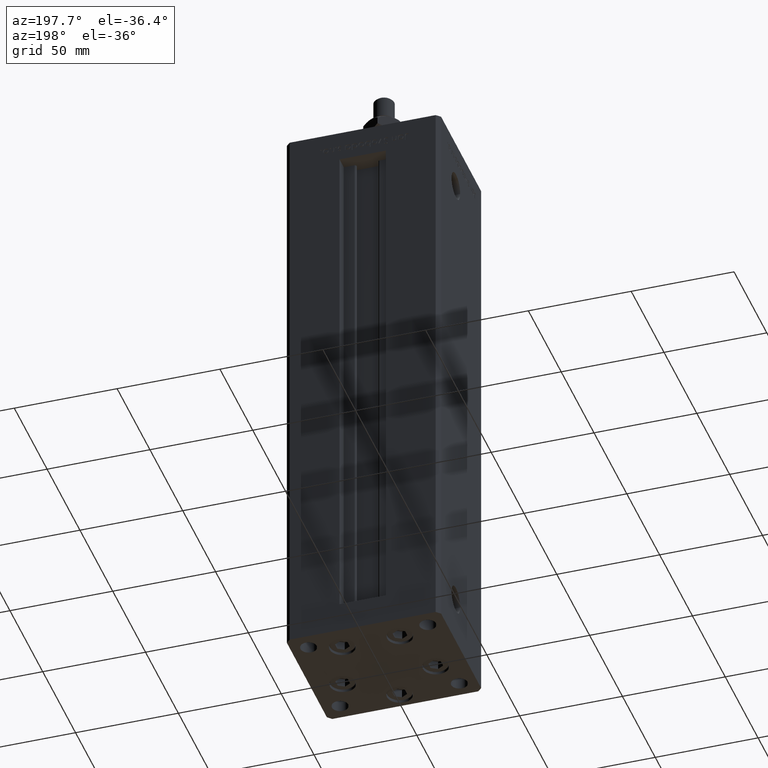
[diagram: clean part render]
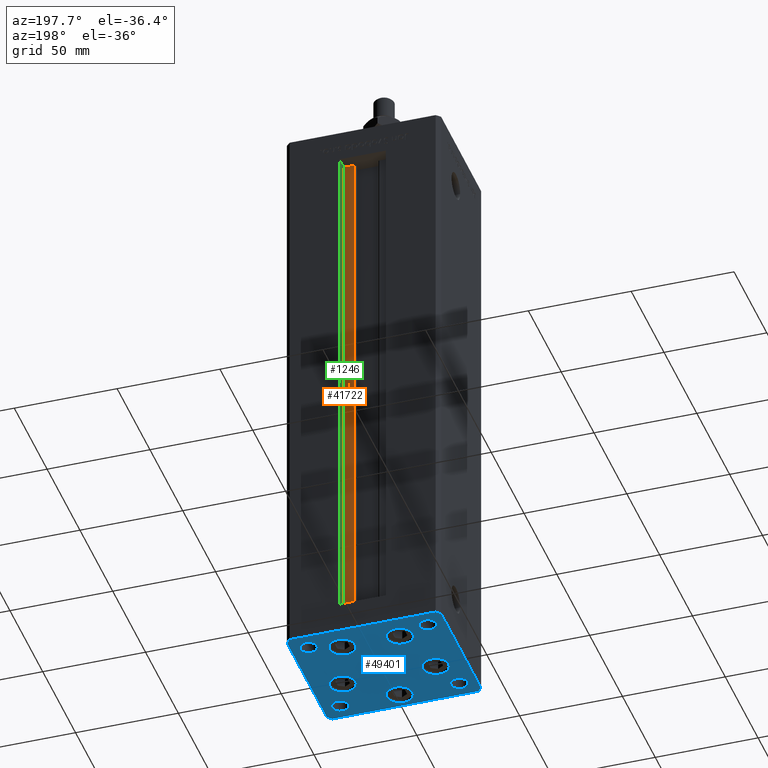
[diagram: same view with three faces highlighted in distinct colors, each labeled with its STEP entity id]
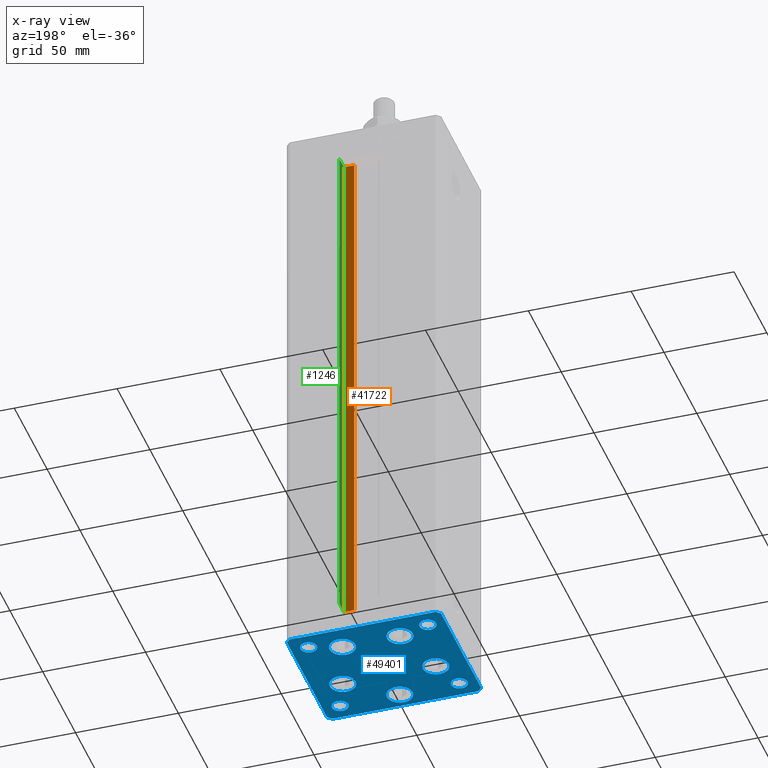
[diagram: x-ray of the same camera — body ghosted, the three highlighted faces saturated]
A machine part, auxiliary view with three faces highlighted in distinct colors.
The next image is the same camera in x-ray (body ghosted, the three faces saturated) — at least one of them is partly hidden behind the body in this view.
Their STEP definitions:

[orange] entity #41722 — the highlighted planar face has unit normal (0, -1, 0).
#360 = ORIENTED_EDGE ( 'NONE', *, *, #31040, .F. ) ;
#379 = DIRECTION ( 'NONE',  ( -0.000000000000000000, -0.000000000000000000, 1.000000000000000000 ) ) ;
#799 = LINE ( 'NONE', #38281, #48275 ) ;
#848 = VERTEX_POINT ( 'NONE', #29689 ) ;
#7837 = EDGE_LOOP ( 'NONE', ( #14987, #50062, #9845, #360 ) ) ;
#9845 = ORIENTED_EDGE ( 'NONE', *, *, #13611, .T. ) ;
#10400 = VECTOR ( 'NONE', #36950, 1000.000000000000000 ) ;
#13611 = EDGE_CURVE ( 'NONE', #35153, #848, #799, .T. ) ;
#14987 = ORIENTED_EDGE ( 'NONE', *, *, #28647, .F. ) ;
#15499 = CARTESIAN_POINT ( 'NONE',  ( 11.25000000000000178, 25.99999999999999289, 0.000000000000000000 ) ) ;
#15905 = VERTEX_POINT ( 'NONE', #51975 ) ;
#16407 = LINE ( 'NONE', #32971, #46452 ) ;
#17359 = CARTESIAN_POINT ( 'NONE',  ( 6.183333333334001480, 25.99999999999999289, 0.000000000000000000 ) ) ;
#18944 = AXIS2_PLACEMENT_3D ( 'NONE', #17359, #33638, #32834 ) ;
#20400 = CARTESIAN_POINT ( 'NONE',  ( 6.183333333334001480, 25.99999999999999289, 0.000000000000000000 ) ) ;
#23844 = EDGE_CURVE ( 'NONE', #35153, #46197, #28006, .T. ) ;
#24318 = CARTESIAN_POINT ( 'NONE',  ( 6.183333333334001480, 25.99999999999999289, 0.000000000000000000 ) ) ;
#28006 = LINE ( 'NONE', #20400, #10400 ) ;
#28647 = EDGE_CURVE ( 'NONE', #46197, #15905, #16407, .T. ) ;
#29689 = CARTESIAN_POINT ( 'NONE',  ( 6.183333333334001480, 25.99999999999999289, 256.0000000000000000 ) ) ;
#31040 = EDGE_CURVE ( 'NONE', #15905, #848, #51705, .T. ) ;
#32834 = DIRECTION ( 'NONE',  ( 0.000000000000000000, -0.000000000000000000, -1.000000000000000000 ) ) ;
#32971 = CARTESIAN_POINT ( 'NONE',  ( 11.25000000000000178, 25.99999999999999289, 0.000000000000000000 ) ) ;
#33108 = FACE_OUTER_BOUND ( 'NONE', #7837, .T. ) ;
#33638 = DIRECTION ( 'NONE',  ( 0.000000000000000000, -1.000000000000000000, 0.000000000000000000 ) ) ;
#34459 = DIRECTION ( 'NONE',  ( -0.000000000000000000, -0.000000000000000000, 1.000000000000000000 ) ) ;
#34584 = DIRECTION ( 'NONE',  ( -1.000000000000000000, 0.000000000000000000, 0.000000000000000000 ) ) ;
#35153 = VERTEX_POINT ( 'NONE', #24318 ) ;
#36950 = DIRECTION ( 'NONE',  ( 1.000000000000000000, 0.000000000000000000, 0.000000000000000000 ) ) ;
#38281 = CARTESIAN_POINT ( 'NONE',  ( 6.183333333334001480, 25.99999999999999289, 0.000000000000000000 ) ) ;
#41722 = ADVANCED_FACE ( 'NONE', ( #33108 ), #46413, .F. ) ;
#43536 = CARTESIAN_POINT ( 'NONE',  ( 0.000000000000000000, 25.99999999999999289, 256.0000000000000000 ) ) ;
#46197 = VERTEX_POINT ( 'NONE', #15499 ) ;
#46413 = PLANE ( 'NONE',  #18944 ) ;
#46452 = VECTOR ( 'NONE', #379, 1000.000000000000000 ) ;
#48102 = VECTOR ( 'NONE', #34584, 1000.000000000000000 ) ;
#48275 = VECTOR ( 'NONE', #34459, 1000.000000000000000 ) ;
#50062 = ORIENTED_EDGE ( 'NONE', *, *, #23844, .F. ) ;
#51705 = LINE ( 'NONE', #43536, #48102 ) ;
#51975 = CARTESIAN_POINT ( 'NONE',  ( 11.25000000000000178, 25.99999999999999289, 256.0000000000000000 ) ) ;

[blue] entity #49401 — the highlighted planar face has unit normal (0, 0, -1).
#217 = VERTEX_POINT ( 'NONE', #1107 ) ;
#474 = ORIENTED_EDGE ( 'NONE', *, *, #4106, .T. ) ;
#608 = PLANE ( 'NONE',  #29402 ) ;
#638 = VERTEX_POINT ( 'NONE', #2586 ) ;
#708 = CIRCLE ( 'NONE', #24976, 6.250000000000000000 ) ;
#937 = CARTESIAN_POINT ( 'NONE',  ( -25.00000000000001066, -23.99999999999999289, 0.000000000000000000 ) ) ;
#1006 = DIRECTION ( 'NONE',  ( 1.000000000000000000, 0.000000000000000000, 0.000000000000000000 ) ) ;
#1107 = CARTESIAN_POINT ( 'NONE',  ( 37.50000000000001421, -30.50000000000000711, 0.000000000000000000 ) ) ;
#1165 = VERTEX_POINT ( 'NONE', #8740 ) ;
#1180 = DIRECTION ( 'NONE',  ( 1.000000000000000000, 0.000000000000000000, 0.000000000000000000 ) ) ;
#1450 = CARTESIAN_POINT ( 'NONE',  ( -13.99106857963322703, 19.49999999999999645, 0.000000000000000000 ) ) ;
#1964 = VERTEX_POINT ( 'NONE', #37385 ) ;
#1966 = ORIENTED_EDGE ( 'NONE', *, *, #23042, .T. ) ;
#2155 = AXIS2_PLACEMENT_3D ( 'NONE', #3382, #2853, #7721 ) ;
#2377 = CARTESIAN_POINT ( 'NONE',  ( -29.00000000000001066, 24.00000000000000711, 0.000000000000000000 ) ) ;
#2586 = CARTESIAN_POINT ( 'NONE',  ( 7.741068579633223479, 19.50000000000000000, 0.000000000000000000 ) ) ;
#2666 = CARTESIAN_POINT ( 'NONE',  ( -35.49999999999998579, -32.50000000000001421, 0.000000000000000000 ) ) ;
#2853 = DIRECTION ( 'NONE',  ( 0.000000000000000000, -0.000000000000000000, -1.000000000000000000 ) ) ;
#3230 = ORIENTED_EDGE ( 'NONE', *, *, #27435, .F. ) ;
#3269 = VECTOR ( 'NONE', #20703, 1000.000000000000000 ) ;
#3382 = CARTESIAN_POINT ( 'NONE',  ( 29.00000000000001066, -23.99999999999999289, 0.000000000000000000 ) ) ;
#3392 = CARTESIAN_POINT ( 'NONE',  ( -29.00000000000001066, 24.00000000000000711, 0.000000000000000000 ) ) ;
#3556 = CARTESIAN_POINT ( 'NONE',  ( -35.50000000000002842, 32.49999999999999289, 0.000000000000000000 ) ) ;
#3641 = ORIENTED_EDGE ( 'NONE', *, *, #41429, .T. ) ;
#3980 = AXIS2_PLACEMENT_3D ( 'NONE', #34803, #5755, #43231 ) ;
#4000 = CARTESIAN_POINT ( 'NONE',  ( 35.49999999999992184, 32.50000000000000711, 0.000000000000000000 ) ) ;
#4106 = EDGE_CURVE ( 'NONE', #13740, #31493, #10956, .T. ) ;
#4216 = EDGE_CURVE ( 'NONE', #10160, #32387, #44619, .T. ) ;
#4575 = ORIENTED_EDGE ( 'NONE', *, *, #31825, .T. ) ;
#4646 = EDGE_LOOP ( 'NONE', ( #47519, #27226 ) ) ;
#5755 = DIRECTION ( 'NONE',  ( 0.000000000000000000, -0.000000000000000000, -1.000000000000000000 ) ) ;
#5964 = CIRCLE ( 'NONE', #37205, 6.250000000000001776 ) ;
#6345 = CARTESIAN_POINT ( 'NONE',  ( 37.49999999999992184, 30.50000000000001066, 0.000000000000000000 ) ) ;
#6399 = DIRECTION ( 'NONE',  ( 1.000000000000000000, 0.000000000000000000, 0.000000000000000000 ) ) ;
#6443 = VECTOR ( 'NONE', #7409, 1000.000000000000114 ) ;
#6494 = DIRECTION ( 'NONE',  ( 0.000000000000000000, -0.000000000000000000, -1.000000000000000000 ) ) ;
#6669 = DIRECTION ( 'NONE',  ( 0.000000000000000000, -0.000000000000000000, -1.000000000000000000 ) ) ;
#6945 = CIRCLE ( 'NONE', #29503, 3.999999999999996447 ) ;
#7080 = CARTESIAN_POINT ( 'NONE',  ( 29.00000000000001066, 24.00000000000000711, 0.000000000000000000 ) ) ;
#7147 = DIRECTION ( 'NONE',  ( -0.7071067811865482389, 0.7071067811865469066, 0.000000000000000000 ) ) ;
#7163 = ORIENTED_EDGE ( 'NONE', *, *, #11513, .F. ) ;
#7409 = DIRECTION ( 'NONE',  ( 0.7071067811865474617, -0.7071067811865474617, 0.000000000000000000 ) ) ;
#7524 = LINE ( 'NONE', #4000, #21703 ) ;
#7537 = AXIS2_PLACEMENT_3D ( 'NONE', #21659, #38751, #1006 ) ;
#7710 = VERTEX_POINT ( 'NONE', #45807 ) ;
#7721 = DIRECTION ( 'NONE',  ( 1.000000000000000000, 0.000000000000000000, 0.000000000000000000 ) ) ;
#7804 = CIRCLE ( 'NONE', #32060, 6.250000000000000000 ) ;
#7832 = CARTESIAN_POINT ( 'NONE',  ( -35.50000000000002842, 32.49999999999999289, 0.000000000000000000 ) ) ;
#8111 = VERTEX_POINT ( 'NONE', #21381 ) ;
#8421 = EDGE_CURVE ( 'NONE', #42118, #53080, #20446, .T. ) ;
#8488 = DIRECTION ( 'NONE',  ( 1.000000000000000000, 0.000000000000000000, 0.000000000000000000 ) ) ;
#8497 = FACE_BOUND ( 'NONE', #48600, .T. ) ;
#8596 = CARTESIAN_POINT ( 'NONE',  ( 29.00000000000001066, 24.00000000000000711, 0.000000000000000000 ) ) ;
#8740 = CARTESIAN_POINT ( 'NONE',  ( 25.00000000000000711, -23.99999999999999289, 0.000000000000000000 ) ) ;
#8781 = EDGE_LOOP ( 'NONE', ( #28926, #14726 ) ) ;
#9453 = ORIENTED_EDGE ( 'NONE', *, *, #48179, .T. ) ;
#9600 = ORIENTED_EDGE ( 'NONE', *, *, #31327, .T. ) ;
#9631 = CARTESIAN_POINT ( 'NONE',  ( -28.87741699796952233, -8.000000000000005329, 0.000000000000000000 ) ) ;
#9689 = CARTESIAN_POINT ( 'NONE',  ( 35.49999999999992184, 32.50000000000000711, 0.000000000000000000 ) ) ;
#9816 = DIRECTION ( 'NONE',  ( -1.478780668045802821E-15, 1.000000000000000000, 0.000000000000000000 ) ) ;
#9857 = EDGE_CURVE ( 'NONE', #48932, #12725, #41340, .T. ) ;
#10160 = VERTEX_POINT ( 'NONE', #14253 ) ;
#10664 = ORIENTED_EDGE ( 'NONE', *, *, #13256, .T. ) ;
#10714 = EDGE_CURVE ( 'NONE', #30947, #217, #44284, .T. ) ;
#10781 = DIRECTION ( 'NONE',  ( -0.000000000000000000, 0.000000000000000000, 1.000000000000000000 ) ) ;
#10956 = LINE ( 'NONE', #6345, #11642 ) ;
#11088 = CARTESIAN_POINT ( 'NONE',  ( 28.87741699796952233, -8.000000000000000000, 0.000000000000000000 ) ) ;
#11513 = EDGE_CURVE ( 'NONE', #7710, #11637, #13641, .T. ) ;
#11637 = VERTEX_POINT ( 'NONE', #28798 ) ;
#11642 = VECTOR ( 'NONE', #7147, 999.9999999999998863 ) ;
#11746 = CARTESIAN_POINT ( 'NONE',  ( 6.250000000000002665, -24.00000000000000000, 0.000000000000000000 ) ) ;
#11807 = CARTESIAN_POINT ( 'NONE',  ( 13.99106857963322348, 19.50000000000000000, 0.000000000000000000 ) ) ;
#12019 = CARTESIAN_POINT ( 'NONE',  ( -22.62741699796951877, -8.000000000000005329, 0.000000000000000000 ) ) ;
#12028 = CARTESIAN_POINT ( 'NONE',  ( -37.49999999999998579, -30.50000000000001421, 0.000000000000000000 ) ) ;
#12291 = CARTESIAN_POINT ( 'NONE',  ( -37.50000000000001421, 30.49999999999998579, 0.000000000000000000 ) ) ;
#12725 = VERTEX_POINT ( 'NONE', #33076 ) ;
#12752 = CIRCLE ( 'NONE', #7537, 6.250000000000001776 ) ;
#13111 = CARTESIAN_POINT ( 'NONE',  ( 0.000000000000000000, 0.000000000000000000, 0.000000000000000000 ) ) ;
#13256 = EDGE_CURVE ( 'NONE', #8111, #10160, #48939, .T. ) ;
#13641 = CIRCLE ( 'NONE', #50084, 4.000000000000003553 ) ;
#13740 = VERTEX_POINT ( 'NONE', #35242 ) ;
#14032 = EDGE_CURVE ( 'NONE', #46583, #53057, #38747, .T. ) ;
#14252 = ORIENTED_EDGE ( 'NONE', *, *, #42617, .T. ) ;
#14253 = CARTESIAN_POINT ( 'NONE',  ( -37.49999999999998579, -30.50000000000001421, 0.000000000000000000 ) ) ;
#14474 = AXIS2_PLACEMENT_3D ( 'NONE', #44440, #53401, #52338 ) ;
#14726 = ORIENTED_EDGE ( 'NONE', *, *, #52148, .F. ) ;
#15715 = LINE ( 'NONE', #7832, #45958 ) ;
#16096 = FACE_OUTER_BOUND ( 'NONE', #19938, .T. ) ;
#16138 = DIRECTION ( 'NONE',  ( 1.000000000000000000, 0.000000000000000000, 0.000000000000000000 ) ) ;
#16344 = VECTOR ( 'NONE', #25829, 1000.000000000000000 ) ;
#16640 = FACE_BOUND ( 'NONE', #19334, .T. ) ;
#16890 = CIRCLE ( 'NONE', #33360, 6.250000000000000000 ) ;
#16959 = CARTESIAN_POINT ( 'NONE',  ( -20.24106857963322881, 19.49999999999999645, 0.000000000000000000 ) ) ;
#17207 = ORIENTED_EDGE ( 'NONE', *, *, #51682, .T. ) ;
#17276 = AXIS2_PLACEMENT_3D ( 'NONE', #43885, #6669, #6399 ) ;
#17388 = CIRCLE ( 'NONE', #52094, 6.250000000000000000 ) ;
#17966 = LINE ( 'NONE', #18964, #42057 ) ;
#18384 = EDGE_CURVE ( 'NONE', #33874, #34221, #708, .T. ) ;
#18964 = CARTESIAN_POINT ( 'NONE',  ( 37.50000000000001421, -30.50000000000000711, 0.000000000000000000 ) ) ;
#18969 = CIRCLE ( 'NONE', #30236, 4.000000000000000000 ) ;
#19334 = EDGE_LOOP ( 'NONE', ( #4575, #9453 ) ) ;
#19490 = AXIS2_PLACEMENT_3D ( 'NONE', #8596, #37101, #25155 ) ;
#19654 = VERTEX_POINT ( 'NONE', #50821 ) ;
#19938 = EDGE_LOOP ( 'NONE', ( #49731, #3641, #24138, #9600, #474, #17207, #49007, #10664 ) ) ;
#19966 = DIRECTION ( 'NONE',  ( 0.000000000000000000, -0.000000000000000000, -1.000000000000000000 ) ) ;
#19983 = AXIS2_PLACEMENT_3D ( 'NONE', #3392, #34317, #30238 ) ;
#20446 = CIRCLE ( 'NONE', #3980, 4.000000000000000000 ) ;
#20703 = DIRECTION ( 'NONE',  ( 4.550094363217855288E-16, -1.000000000000000000, 0.000000000000000000 ) ) ;
#20711 = DIRECTION ( 'NONE',  ( 0.000000000000000000, -0.000000000000000000, -1.000000000000000000 ) ) ;
#21263 = CARTESIAN_POINT ( 'NONE',  ( -7.741068579633227031, 19.49999999999999645, 0.000000000000000000 ) ) ;
#21324 = EDGE_CURVE ( 'NONE', #53080, #42118, #18969, .T. ) ;
#21381 = CARTESIAN_POINT ( 'NONE',  ( -37.50000000000001421, 30.49999999999998579, 0.000000000000000000 ) ) ;
#21659 = CARTESIAN_POINT ( 'NONE',  ( 22.62741699796951877, -8.000000000000000000, 0.000000000000000000 ) ) ;
#21703 = VECTOR ( 'NONE', #32773, 1000.000000000000000 ) ;
#21762 = DIRECTION ( 'NONE',  ( 0.000000000000000000, -0.000000000000000000, -1.000000000000000000 ) ) ;
#21803 = DIRECTION ( 'NONE',  ( 0.000000000000000000, -0.000000000000000000, -1.000000000000000000 ) ) ;
#22056 = VERTEX_POINT ( 'NONE', #3556 ) ;
#22542 = VERTEX_POINT ( 'NONE', #21263 ) ;
#23042 = EDGE_CURVE ( 'NONE', #34221, #33874, #28579, .T. ) ;
#23159 = EDGE_CURVE ( 'NONE', #22056, #8111, #15715, .T. ) ;
#23245 = AXIS2_PLACEMENT_3D ( 'NONE', #12019, #20711, #8488 ) ;
#23519 = CARTESIAN_POINT ( 'NONE',  ( -29.00000000000001066, -23.99999999999999289, 0.000000000000000000 ) ) ;
#23760 = DIRECTION ( 'NONE',  ( 0.000000000000000000, -0.000000000000000000, -1.000000000000000000 ) ) ;
#24138 = ORIENTED_EDGE ( 'NONE', *, *, #10714, .T. ) ;
#24430 = DIRECTION ( 'NONE',  ( 1.000000000000000000, 0.000000000000000000, 0.000000000000000000 ) ) ;
#24626 = EDGE_CURVE ( 'NONE', #638, #53268, #17388, .T. ) ;
#24785 = FACE_BOUND ( 'NONE', #28962, .T. ) ;
#24976 = AXIS2_PLACEMENT_3D ( 'NONE', #29661, #21803, #50341 ) ;
#25067 = EDGE_CURVE ( 'NONE', #1964, #46663, #6945, .T. ) ;
#25155 = DIRECTION ( 'NONE',  ( 1.000000000000000000, 0.000000000000000000, 0.000000000000000000 ) ) ;
#25829 = DIRECTION ( 'NONE',  ( 1.000000000000000000, 9.773090005503140331E-17, 0.000000000000000000 ) ) ;
#27172 = CARTESIAN_POINT ( 'NONE',  ( 35.50000000000000711, -32.50000000000000711, 0.000000000000000000 ) ) ;
#27226 = ORIENTED_EDGE ( 'NONE', *, *, #51086, .T. ) ;
#27435 = EDGE_CURVE ( 'NONE', #11637, #7710, #29028, .T. ) ;
#27662 = ORIENTED_EDGE ( 'NONE', *, *, #18384, .T. ) ;
#28579 = CIRCLE ( 'NONE', #49364, 6.250000000000000000 ) ;
#28600 = DIRECTION ( 'NONE',  ( -0.000000000000000000, 0.000000000000000000, 1.000000000000000000 ) ) ;
#28798 = CARTESIAN_POINT ( 'NONE',  ( 33.00000000000001421, 24.00000000000000711, 0.000000000000000000 ) ) ;
#28926 = ORIENTED_EDGE ( 'NONE', *, *, #25067, .F. ) ;
#28962 = EDGE_LOOP ( 'NONE', ( #33096, #52759 ) ) ;
#29006 = DIRECTION ( 'NONE',  ( -0.7071067811865426878, -0.7071067811865524577, 0.000000000000000000 ) ) ;
#29028 = CIRCLE ( 'NONE', #19490, 4.000000000000003553 ) ;
#29402 = AXIS2_PLACEMENT_3D ( 'NONE', #13111, #28600, #29656 ) ;
#29503 = AXIS2_PLACEMENT_3D ( 'NONE', #2377, #10781, #46944 ) ;
#29656 = DIRECTION ( 'NONE',  ( 1.000000000000000000, 0.000000000000000000, 0.000000000000000000 ) ) ;
#29661 = CARTESIAN_POINT ( 'NONE',  ( 2.939152317953647500E-15, -24.00000000000000000, 0.000000000000000000 ) ) ;
#29884 = CARTESIAN_POINT ( 'NONE',  ( 13.99106857963322348, 19.50000000000000000, 0.000000000000000000 ) ) ;
#30236 = AXIS2_PLACEMENT_3D ( 'NONE', #23519, #40342, #35982 ) ;
#30238 = DIRECTION ( 'NONE',  ( 1.000000000000000000, 0.000000000000000000, 0.000000000000000000 ) ) ;
#30742 = EDGE_CURVE ( 'NONE', #37789, #22542, #16890, .T. ) ;
#30826 = CARTESIAN_POINT ( 'NONE',  ( -33.00000000000000711, -23.99999999999999289, 0.000000000000000000 ) ) ;
#30947 = VERTEX_POINT ( 'NONE', #46279 ) ;
#31131 = AXIS2_PLACEMENT_3D ( 'NONE', #11807, #19966, #43609 ) ;
#31327 = EDGE_CURVE ( 'NONE', #217, #13740, #17966, .T. ) ;
#31493 = VERTEX_POINT ( 'NONE', #9689 ) ;
#31825 = EDGE_CURVE ( 'NONE', #19654, #1165, #36797, .T. ) ;
#32060 = AXIS2_PLACEMENT_3D ( 'NONE', #1450, #50372, #1180 ) ;
#32387 = VERTEX_POINT ( 'NONE', #2666 ) ;
#32773 = DIRECTION ( 'NONE',  ( -1.000000000000000000, -1.954618001100629052E-16, 0.000000000000000000 ) ) ;
#32935 = FACE_BOUND ( 'NONE', #44029, .T. ) ;
#33076 = CARTESIAN_POINT ( 'NONE',  ( 16.37741699796951877, -8.000000000000000000, 0.000000000000000000 ) ) ;
#33096 = ORIENTED_EDGE ( 'NONE', *, *, #21324, .T. ) ;
#33360 = AXIS2_PLACEMENT_3D ( 'NONE', #36765, #23760, #16138 ) ;
#33874 = VERTEX_POINT ( 'NONE', #11746 ) ;
#34221 = VERTEX_POINT ( 'NONE', #53529 ) ;
#34317 = DIRECTION ( 'NONE',  ( -0.000000000000000000, 0.000000000000000000, 1.000000000000000000 ) ) ;
#34803 = CARTESIAN_POINT ( 'NONE',  ( -29.00000000000001066, -23.99999999999999289, 0.000000000000000000 ) ) ;
#35242 = CARTESIAN_POINT ( 'NONE',  ( 37.49999999999992184, 30.50000000000001066, 0.000000000000000000 ) ) ;
#35311 = DIRECTION ( 'NONE',  ( 0.7071067811865487940, 0.7071067811865463515, 0.000000000000000000 ) ) ;
#35982 = DIRECTION ( 'NONE',  ( 1.000000000000000000, 0.000000000000000000, 0.000000000000000000 ) ) ;
#36323 = CIRCLE ( 'NONE', #17276, 4.000000000000003553 ) ;
#36721 = FACE_BOUND ( 'NONE', #4646, .T. ) ;
#36765 = CARTESIAN_POINT ( 'NONE',  ( -13.99106857963322703, 19.49999999999999645, 0.000000000000000000 ) ) ;
#36797 = CIRCLE ( 'NONE', #2155, 4.000000000000003553 ) ;
#37101 = DIRECTION ( 'NONE',  ( -0.000000000000000000, 0.000000000000000000, 1.000000000000000000 ) ) ;
#37205 = AXIS2_PLACEMENT_3D ( 'NONE', #52438, #48878, #24430 ) ;
#37385 = CARTESIAN_POINT ( 'NONE',  ( -25.00000000000001421, 24.00000000000000711, 0.000000000000000000 ) ) ;
#37789 = VERTEX_POINT ( 'NONE', #16959 ) ;
#37892 = ORIENTED_EDGE ( 'NONE', *, *, #14032, .T. ) ;
#38035 = ORIENTED_EDGE ( 'NONE', *, *, #38194, .T. ) ;
#38194 = EDGE_CURVE ( 'NONE', #12725, #48932, #12752, .T. ) ;
#38747 = CIRCLE ( 'NONE', #23245, 6.250000000000001776 ) ;
#38751 = DIRECTION ( 'NONE',  ( 0.000000000000000000, -0.000000000000000000, -1.000000000000000000 ) ) ;
#40342 = DIRECTION ( 'NONE',  ( 0.000000000000000000, -0.000000000000000000, -1.000000000000000000 ) ) ;
#41340 = CIRCLE ( 'NONE', #14474, 6.250000000000001776 ) ;
#41429 = EDGE_CURVE ( 'NONE', #32387, #30947, #46209, .T. ) ;
#41625 = FACE_BOUND ( 'NONE', #8781, .T. ) ;
#42057 = VECTOR ( 'NONE', #9816, 1000.000000000000000 ) ;
#42118 = VERTEX_POINT ( 'NONE', #30826 ) ;
#42413 = CARTESIAN_POINT ( 'NONE',  ( -35.49999999999998579, -32.50000000000001421, 0.000000000000000000 ) ) ;
#42617 = EDGE_CURVE ( 'NONE', #53057, #46583, #5964, .T. ) ;
#43231 = DIRECTION ( 'NONE',  ( 1.000000000000000000, 0.000000000000000000, 0.000000000000000000 ) ) ;
#43609 = DIRECTION ( 'NONE',  ( 1.000000000000000000, 0.000000000000000000, 0.000000000000000000 ) ) ;
#43756 = DIRECTION ( 'NONE',  ( -0.000000000000000000, 0.000000000000000000, 1.000000000000000000 ) ) ;
#43885 = CARTESIAN_POINT ( 'NONE',  ( 29.00000000000001066, -23.99999999999999289, 0.000000000000000000 ) ) ;
#44029 = EDGE_LOOP ( 'NONE', ( #38035, #45684 ) ) ;
#44284 = LINE ( 'NONE', #27172, #46549 ) ;
#44440 = CARTESIAN_POINT ( 'NONE',  ( 22.62741699796951877, -8.000000000000000000, 0.000000000000000000 ) ) ;
#44619 = LINE ( 'NONE', #12028, #6443 ) ;
#45029 = CIRCLE ( 'NONE', #31131, 6.250000000000000000 ) ;
#45346 = CARTESIAN_POINT ( 'NONE',  ( 20.24106857963322526, 19.50000000000000000, 0.000000000000000000 ) ) ;
#45684 = ORIENTED_EDGE ( 'NONE', *, *, #9857, .T. ) ;
#45807 = CARTESIAN_POINT ( 'NONE',  ( 25.00000000000000711, 24.00000000000000711, 0.000000000000000000 ) ) ;
#45958 = VECTOR ( 'NONE', #29006, 1000.000000000000000 ) ;
#46209 = LINE ( 'NONE', #42413, #16344 ) ;
#46279 = CARTESIAN_POINT ( 'NONE',  ( 35.50000000000000711, -32.50000000000000711, 0.000000000000000000 ) ) ;
#46549 = VECTOR ( 'NONE', #35311, 1000.000000000000000 ) ;
#46583 = VERTEX_POINT ( 'NONE', #48235 ) ;
#46663 = VERTEX_POINT ( 'NONE', #49578 ) ;
#46745 = DIRECTION ( 'NONE',  ( 1.000000000000000000, 0.000000000000000000, 0.000000000000000000 ) ) ;
#46944 = DIRECTION ( 'NONE',  ( 1.000000000000000000, 0.000000000000000000, 0.000000000000000000 ) ) ;
#47519 = ORIENTED_EDGE ( 'NONE', *, *, #30742, .T. ) ;
#47524 = DIRECTION ( 'NONE',  ( 1.000000000000000000, 0.000000000000000000, 0.000000000000000000 ) ) ;
#47665 = EDGE_LOOP ( 'NONE', ( #3230, #7163 ) ) ;
#47743 = CIRCLE ( 'NONE', #19983, 3.999999999999996447 ) ;
#48177 = EDGE_CURVE ( 'NONE', #53268, #638, #45029, .T. ) ;
#48179 = EDGE_CURVE ( 'NONE', #1165, #19654, #36323, .T. ) ;
#48235 = CARTESIAN_POINT ( 'NONE',  ( -16.37741699796951877, -8.000000000000005329, 0.000000000000000000 ) ) ;
#48317 = CARTESIAN_POINT ( 'NONE',  ( 2.939152317953647500E-15, -24.00000000000000000, 0.000000000000000000 ) ) ;
#48600 = EDGE_LOOP ( 'NONE', ( #14252, #37892 ) ) ;
#48633 = DIRECTION ( 'NONE',  ( 1.000000000000000000, 0.000000000000000000, 0.000000000000000000 ) ) ;
#48878 = DIRECTION ( 'NONE',  ( 0.000000000000000000, -0.000000000000000000, -1.000000000000000000 ) ) ;
#48927 = ORIENTED_EDGE ( 'NONE', *, *, #48177, .T. ) ;
#48932 = VERTEX_POINT ( 'NONE', #11088 ) ;
#48939 = LINE ( 'NONE', #12291, #3269 ) ;
#49007 = ORIENTED_EDGE ( 'NONE', *, *, #23159, .T. ) ;
#49364 = AXIS2_PLACEMENT_3D ( 'NONE', #48317, #6494, #47524 ) ;
#49401 = ADVANCED_FACE ( 'NONE', ( #36721, #50336, #32935, #53598, #8497, #49780, #16640, #41625, #16096, #24785 ), #608, .T. ) ;
#49578 = CARTESIAN_POINT ( 'NONE',  ( -33.00000000000000711, 24.00000000000000711, 0.000000000000000000 ) ) ;
#49731 = ORIENTED_EDGE ( 'NONE', *, *, #4216, .T. ) ;
#49780 = FACE_BOUND ( 'NONE', #47665, .T. ) ;
#49811 = EDGE_LOOP ( 'NONE', ( #1966, #27662 ) ) ;
#50084 = AXIS2_PLACEMENT_3D ( 'NONE', #7080, #43756, #48633 ) ;
#50336 = FACE_BOUND ( 'NONE', #53552, .T. ) ;
#50341 = DIRECTION ( 'NONE',  ( 1.000000000000000000, 0.000000000000000000, 0.000000000000000000 ) ) ;
#50372 = DIRECTION ( 'NONE',  ( 0.000000000000000000, -0.000000000000000000, -1.000000000000000000 ) ) ;
#50821 = CARTESIAN_POINT ( 'NONE',  ( 33.00000000000001421, -23.99999999999999289, 0.000000000000000000 ) ) ;
#51086 = EDGE_CURVE ( 'NONE', #22542, #37789, #7804, .T. ) ;
#51682 = EDGE_CURVE ( 'NONE', #31493, #22056, #7524, .T. ) ;
#52094 = AXIS2_PLACEMENT_3D ( 'NONE', #29884, #21762, #46745 ) ;
#52148 = EDGE_CURVE ( 'NONE', #46663, #1964, #47743, .T. ) ;
#52338 = DIRECTION ( 'NONE',  ( 1.000000000000000000, 0.000000000000000000, 0.000000000000000000 ) ) ;
#52438 = CARTESIAN_POINT ( 'NONE',  ( -22.62741699796951877, -8.000000000000005329, 0.000000000000000000 ) ) ;
#52759 = ORIENTED_EDGE ( 'NONE', *, *, #8421, .T. ) ;
#53057 = VERTEX_POINT ( 'NONE', #9631 ) ;
#53080 = VERTEX_POINT ( 'NONE', #937 ) ;
#53268 = VERTEX_POINT ( 'NONE', #45346 ) ;
#53331 = ORIENTED_EDGE ( 'NONE', *, *, #24626, .T. ) ;
#53401 = DIRECTION ( 'NONE',  ( 0.000000000000000000, -0.000000000000000000, -1.000000000000000000 ) ) ;
#53529 = CARTESIAN_POINT ( 'NONE',  ( -6.249999999999997335, -24.00000000000000000, 0.000000000000000000 ) ) ;
#53552 = EDGE_LOOP ( 'NONE', ( #53331, #48927 ) ) ;
#53598 = FACE_BOUND ( 'NONE', #49811, .T. ) ;

[green] entity #1246 — the highlighted planar face has unit normal (1, 0, 0).
#379 = DIRECTION ( 'NONE',  ( -0.000000000000000000, -0.000000000000000000, 1.000000000000000000 ) ) ;
#1102 = DIRECTION ( 'NONE',  ( 0.000000000000000000, 1.000000000000000000, 0.000000000000000000 ) ) ;
#1246 = ADVANCED_FACE ( 'NONE', ( #26102 ), #51366, .F. ) ;
#5201 = CARTESIAN_POINT ( 'NONE',  ( 11.25000000000000178, 25.99999999999999289, 0.000000000000000000 ) ) ;
#6000 = EDGE_CURVE ( 'NONE', #46197, #21201, #26089, .T. ) ;
#7445 = VECTOR ( 'NONE', #8053, 1000.000000000000000 ) ;
#7606 = EDGE_CURVE ( 'NONE', #21201, #49237, #27889, .T. ) ;
#7617 = ORIENTED_EDGE ( 'NONE', *, *, #28647, .T. ) ;
#8053 = DIRECTION ( 'NONE',  ( -0.000000000000000000, -0.000000000000000000, 1.000000000000000000 ) ) ;
#9117 = ORIENTED_EDGE ( 'NONE', *, *, #6000, .F. ) ;
#15499 = CARTESIAN_POINT ( 'NONE',  ( 11.25000000000000178, 25.99999999999999289, 0.000000000000000000 ) ) ;
#15510 = ORIENTED_EDGE ( 'NONE', *, *, #7606, .F. ) ;
#15905 = VERTEX_POINT ( 'NONE', #51975 ) ;
#16204 = LINE ( 'NONE', #46342, #30215 ) ;
#16407 = LINE ( 'NONE', #32971, #46452 ) ;
#18047 = CARTESIAN_POINT ( 'NONE',  ( 11.24999999999999467, 32.49999999999999289, 256.0000000000000000 ) ) ;
#21201 = VERTEX_POINT ( 'NONE', #50721 ) ;
#22153 = VECTOR ( 'NONE', #1102, 1000.000000000000000 ) ;
#23351 = EDGE_LOOP ( 'NONE', ( #15510, #9117, #7617, #29479 ) ) ;
#26089 = LINE ( 'NONE', #5201, #22153 ) ;
#26102 = FACE_OUTER_BOUND ( 'NONE', #23351, .T. ) ;
#27889 = LINE ( 'NONE', #53153, #7445 ) ;
#28647 = EDGE_CURVE ( 'NONE', #46197, #15905, #16407, .T. ) ;
#29479 = ORIENTED_EDGE ( 'NONE', *, *, #42039, .F. ) ;
#29631 = DIRECTION ( 'NONE',  ( 0.000000000000000000, 0.000000000000000000, -1.000000000000000000 ) ) ;
#30215 = VECTOR ( 'NONE', #32766, 1000.000000000000000 ) ;
#32766 = DIRECTION ( 'NONE',  ( -0.000000000000000000, -1.000000000000000000, 0.000000000000000000 ) ) ;
#32971 = CARTESIAN_POINT ( 'NONE',  ( 11.25000000000000178, 25.99999999999999289, 0.000000000000000000 ) ) ;
#34126 = AXIS2_PLACEMENT_3D ( 'NONE', #51107, #47017, #29631 ) ;
#42039 = EDGE_CURVE ( 'NONE', #49237, #15905, #16204, .T. ) ;
#46197 = VERTEX_POINT ( 'NONE', #15499 ) ;
#46342 = CARTESIAN_POINT ( 'NONE',  ( 11.25000000000000178, 0.000000000000000000, 256.0000000000000000 ) ) ;
#46452 = VECTOR ( 'NONE', #379, 1000.000000000000000 ) ;
#47017 = DIRECTION ( 'NONE',  ( 1.000000000000000000, -0.000000000000000000, 0.000000000000000000 ) ) ;
#49237 = VERTEX_POINT ( 'NONE', #18047 ) ;
#50721 = CARTESIAN_POINT ( 'NONE',  ( 11.25000000000000178, 32.49999999999999289, 0.000000000000000000 ) ) ;
#51107 = CARTESIAN_POINT ( 'NONE',  ( 11.25000000000000178, 25.99999999999999289, 0.000000000000000000 ) ) ;
#51366 = PLANE ( 'NONE',  #34126 ) ;
#51975 = CARTESIAN_POINT ( 'NONE',  ( 11.25000000000000178, 25.99999999999999289, 256.0000000000000000 ) ) ;
#53153 = CARTESIAN_POINT ( 'NONE',  ( 11.25000000000000178, 32.49999999999999289, 0.000000000000000000 ) ) ;